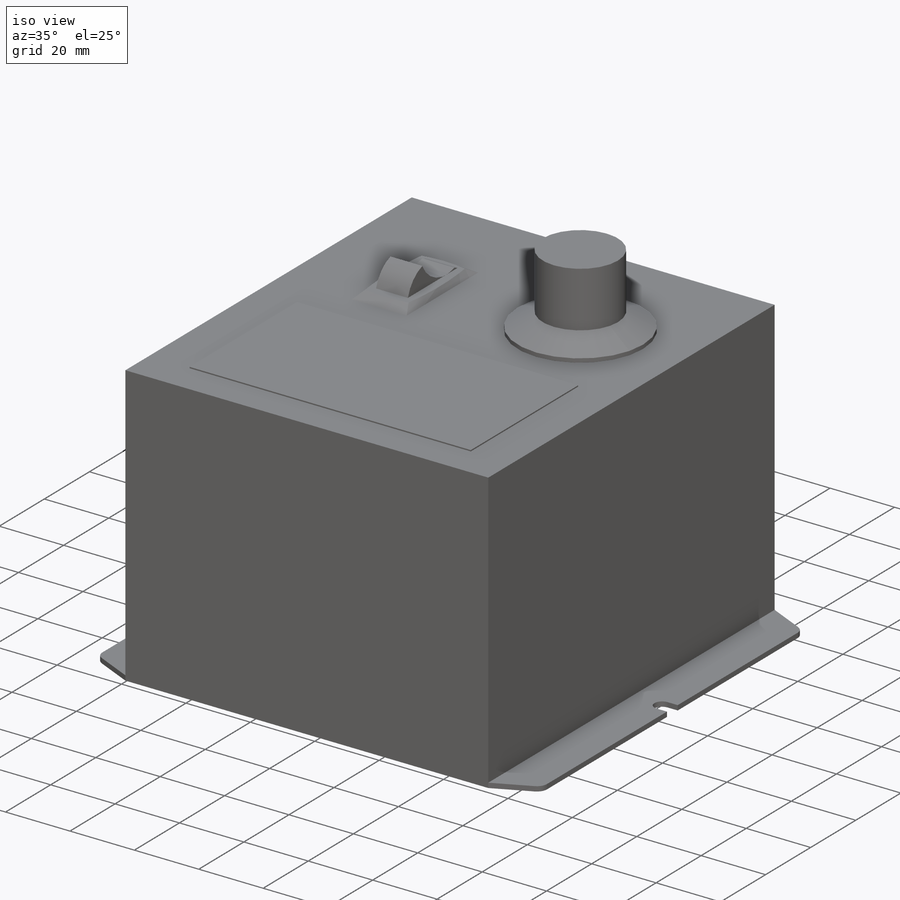
[diagram: iso view]
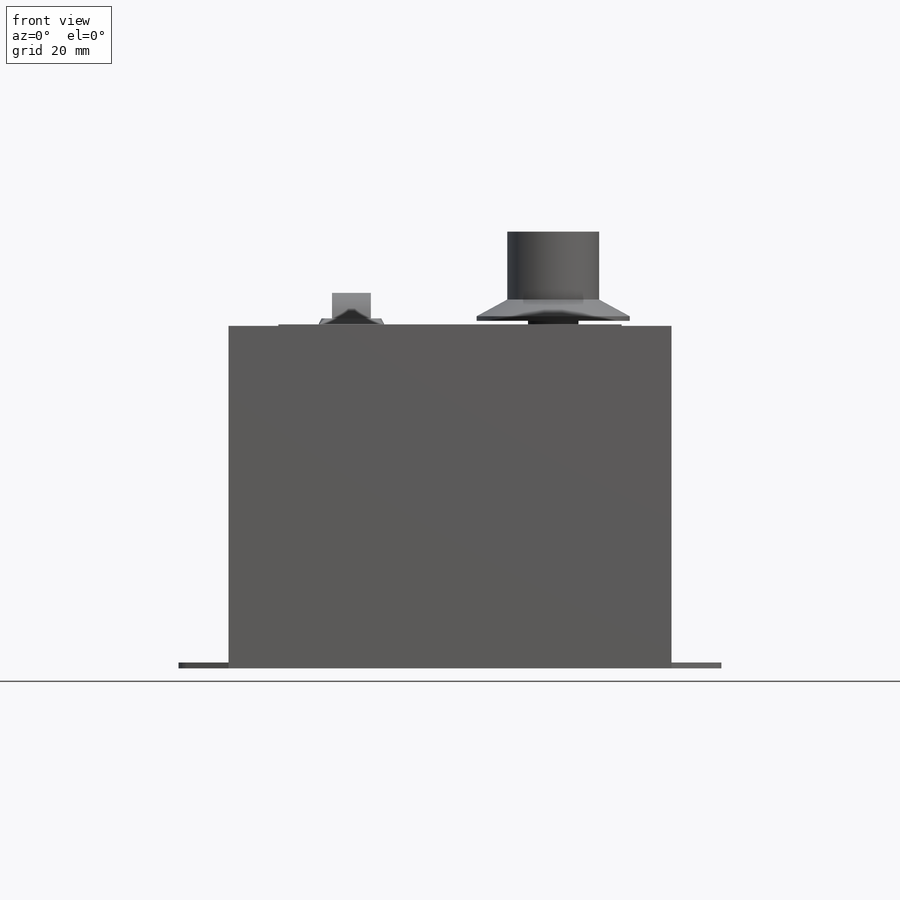
[diagram: front view]
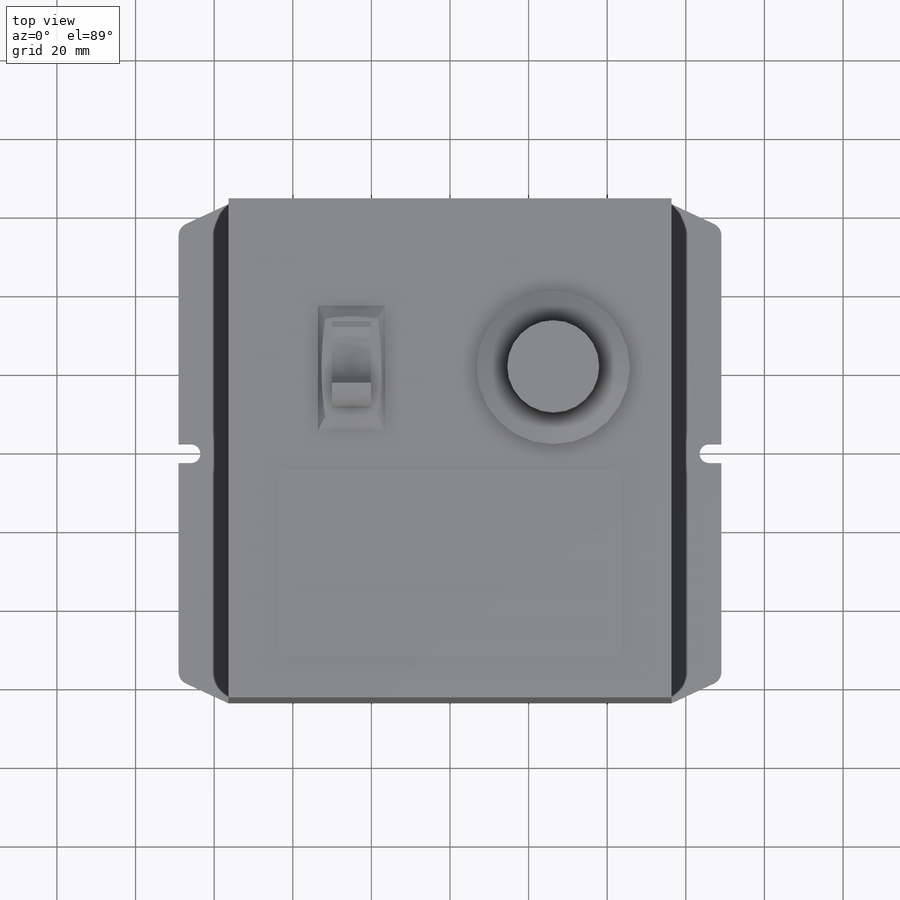
[diagram: top view]
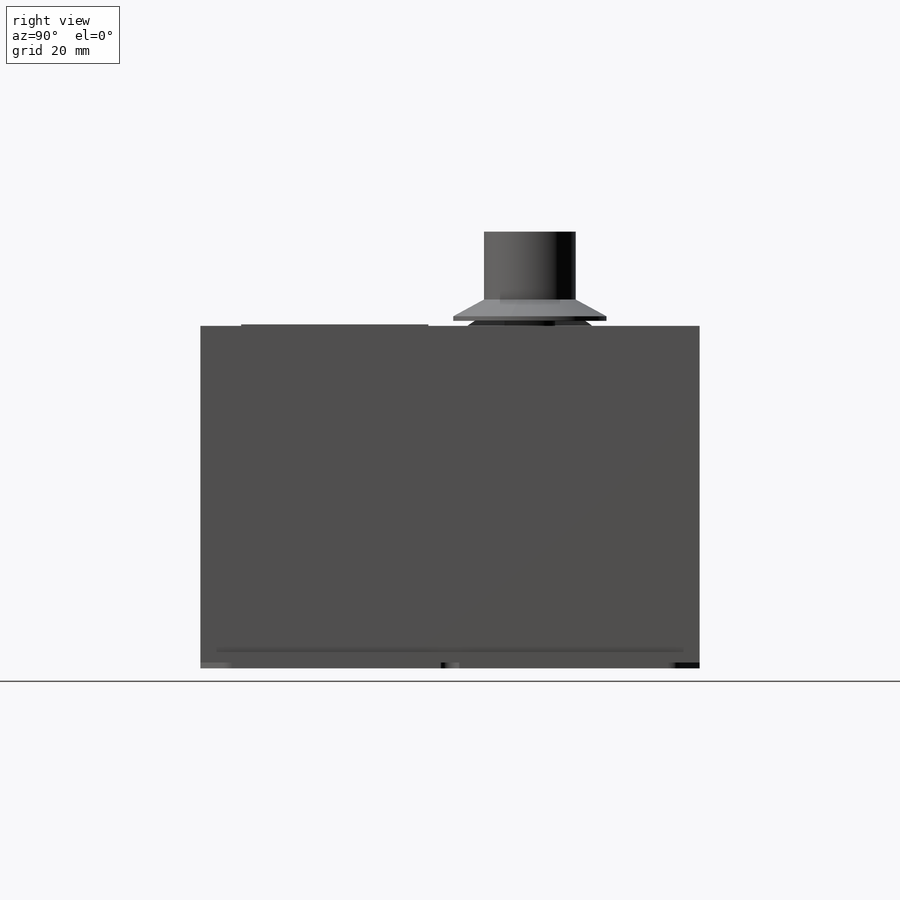
[diagram: right view]
SOLIDWORKS PART (.sldprt)
format: sldprt  version: not decoded by parser v0  size: 512,512 bytes
history: native  units: mm
features: sketch x9, extrude x4, plane x3, material x1, revolve x1 (+14 scaffold rows collapsed)
feature tree (32):
  scaffold x14  (default folders/planes/origin — collapsed)
  material  "Material <not specified>"
  sketch  "Sketch2"
  sketch  "param"  dims[D1=127.0mm D2=112.6998mm]
  extrude  "Extrude1"  Depth=87.122mm
  sketch  "Sketch3"  dims[c1.D2=3.175mm c1.D5=~2.38125mm c1.D1=12.7mm c1.D3=~11.295904mm c2.D3=25.0deg c2.D4=4.7625mm c2.D5=3.175mm]
  extrude  "Extrude2"  Depth=1.4986mm
  plane  "Plane1"  Offset=20.32mm
  sketch  "Sketch4"  dims[D1=30.099mm D2=17.272mm D3=1.1938mm D4=4.2418mm D5=23.9776mm D6=23.368mm D7=12.827mm D8=38.9636mm]
  revolve  "Revolve1"  Angle=360deg
  sketch  "Sketch6"  dims[c1.D4=23.368mm c1.D1=17.018mm c1.D2=31.75mm c1.D3=43.18mm c2.D4=51.3334mm]
  plane  "Plane2"  Offset=1.905mm
  sketch  "Sketch7"  dims[c1.D1=~53.089067mm c1.D2=~12.913664mm c1.D3=38.1mm c2.D2=88.9mm c2.D1=88.9mm c3.D2=38.1mm c3.D4=88.9mm c3.D5=~36.167362mm c3.D6=38.1mm c3.D1=15.24mm c4.D2=26.1874mm c4.D4=15.24mm c4.D5=~162.598649mm c4.D6=~25.022536mm]
  plane  "Plane3"  Offset=25.0698mm
  sketch  "Sketch8"  dims[c1.D1=9.525mm c1.D2=11.9126mm c1.D8=9.525mm c1.D3=1.2192mm c1.D4=10.414mm c1.D5=14.3002mm c1.D6=0.635mm c1.D7=10.414mm c2.D8=~7.326029mm]
  extrude  "Extrude4"  Depth=9.906mm
  sketch  "Sketch9"  dims[D1=87.3252mm D2=47.625mm D3=10.3632mm]
  extrude  "Extrude5"  Depth=0.381mm
  sketch  "Sketch11"
decode coverage: 12 of 14 modeling features carry decoded parameters
note: ~ marks probable driven/reference dimensions
note: suppression state not decoded; provenance and decode notes live in map.json
